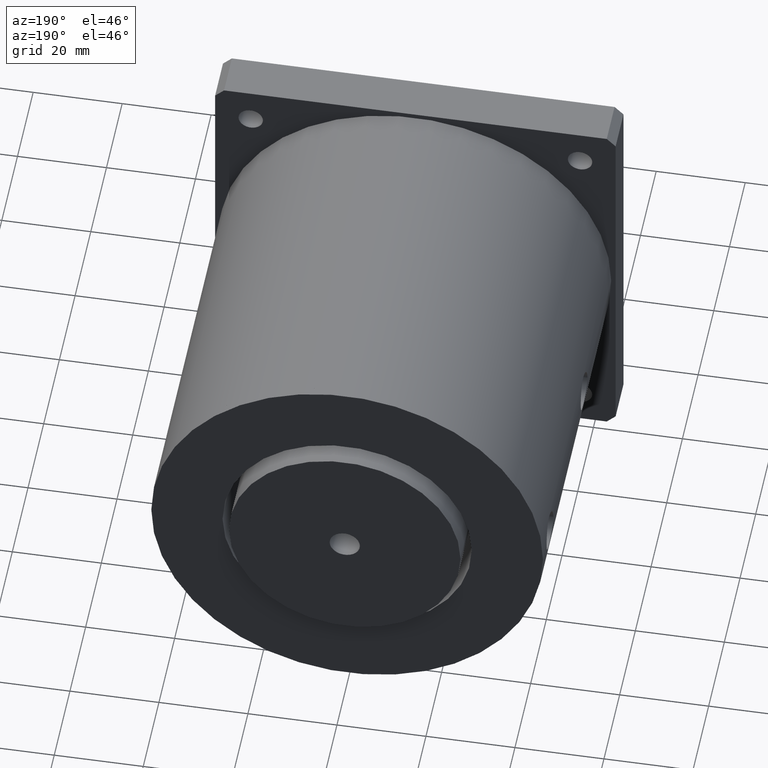
[diagram: clean part render]
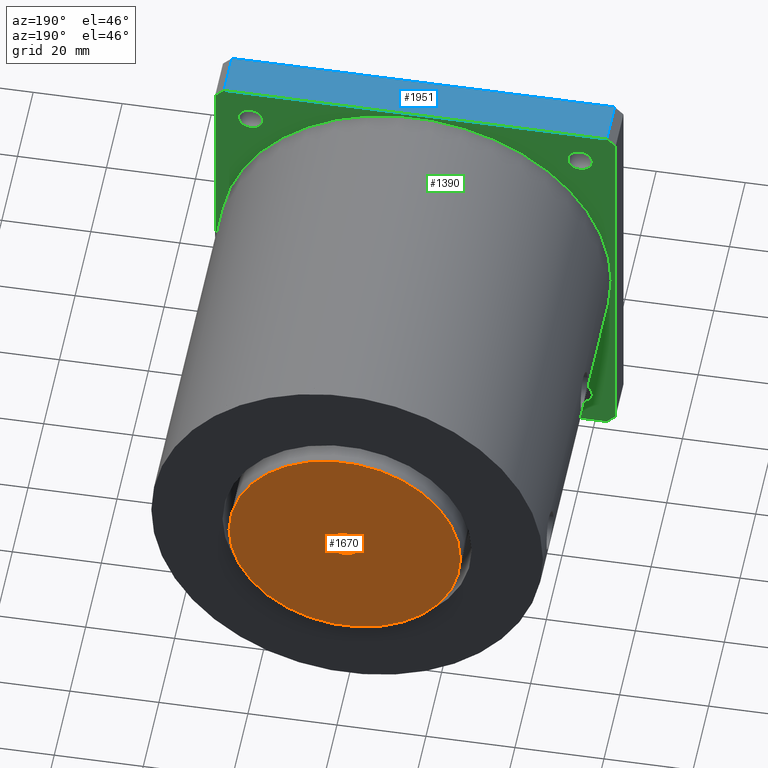
[diagram: same view with three faces highlighted in distinct colors, each labeled with its STEP entity id]
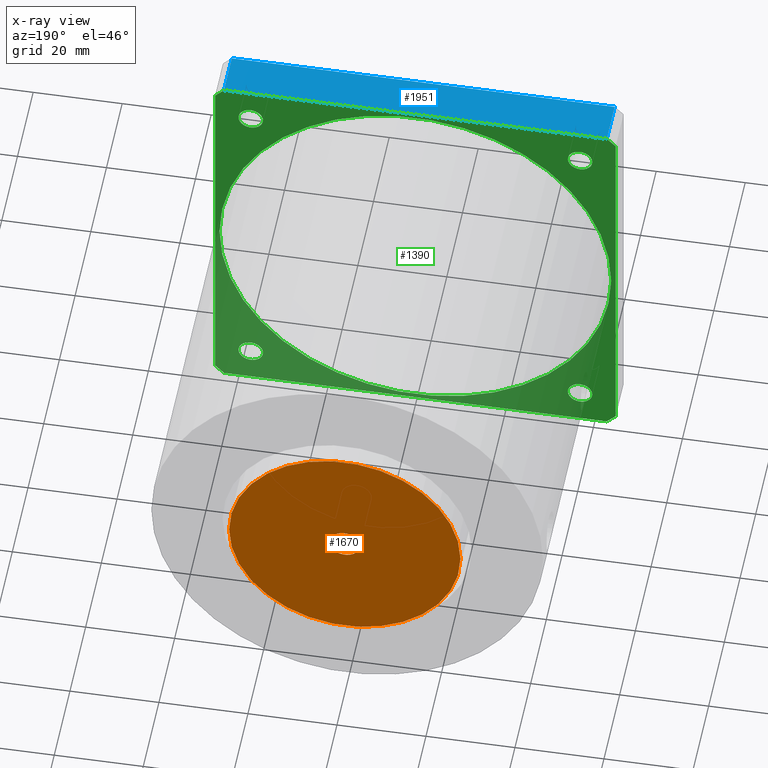
[diagram: x-ray of the same camera — body ghosted, the three highlighted faces saturated]
A machine part, auxiliary view with three faces highlighted in distinct colors.
The next image is the same camera in x-ray (body ghosted, the three faces saturated) — at least one of them is partly hidden behind the body in this view.
Their STEP definitions:

[orange] entity #1670 — the highlighted planar face has unit normal (0, 1, 0).
#861=CARTESIAN_POINT('',(0.E0,-9.E1,0.E0));
#862=DIRECTION('',(0.E0,-1.E0,0.E0));
#863=DIRECTION('',(1.E0,0.E0,0.E0));
#864=AXIS2_PLACEMENT_3D('',#861,#862,#863);
#869=CARTESIAN_POINT('',(0.E0,-9.E1,0.E0));
#870=DIRECTION('',(0.E0,-1.E0,0.E0));
#871=DIRECTION('',(-1.E0,0.E0,0.E0));
#872=AXIS2_PLACEMENT_3D('',#869,#870,#871);
#877=CARTESIAN_POINT('',(0.E0,-9.E1,0.E0));
#878=DIRECTION('',(0.E0,-1.E0,0.E0));
#879=DIRECTION('',(-1.E0,0.E0,0.E0));
#880=AXIS2_PLACEMENT_3D('',#877,#878,#879);
#885=CARTESIAN_POINT('',(0.E0,-9.E1,0.E0));
#886=DIRECTION('',(0.E0,-1.E0,0.E0));
#887=DIRECTION('',(1.E0,0.E0,0.E0));
#888=AXIS2_PLACEMENT_3D('',#885,#886,#887);
#1295=CARTESIAN_POINT('',(2.6E1,-9.E1,0.E0));
#1296=CARTESIAN_POINT('',(-2.6E1,-9.E1,0.E0));
#1297=VERTEX_POINT('',#1295);
#1298=VERTEX_POINT('',#1296);
#1309=CARTESIAN_POINT('',(-3.4E0,-9.E1,0.E0));
#1310=CARTESIAN_POINT('',(3.4E0,-9.E1,0.E0));
#1311=VERTEX_POINT('',#1309);
#1312=VERTEX_POINT('',#1310);
#1655=CARTESIAN_POINT('',(0.E0,-9.E1,0.E0));
#1656=DIRECTION('',(0.E0,-1.E0,0.E0));
#1657=DIRECTION('',(1.E0,0.E0,0.E0));
#1658=AXIS2_PLACEMENT_3D('',#1655,#1656,#1657);
#1659=PLANE('',#1658);
#1660=ORIENTED_EDGE('',*,*,#1635,.F.);
#1661=ORIENTED_EDGE('',*,*,#1649,.F.);
#1662=EDGE_LOOP('',(#1660,#1661));
#1663=FACE_OUTER_BOUND('',#1662,.F.);
#1665=ORIENTED_EDGE('',*,*,#1664,.T.);
#1667=ORIENTED_EDGE('',*,*,#1666,.T.);
#1668=EDGE_LOOP('',(#1665,#1667));
#1669=FACE_BOUND('',#1668,.F.);
#865=CIRCLE('',#864,2.6E1);
#873=CIRCLE('',#872,2.6E1);
#881=CIRCLE('',#880,3.4E0);
#889=CIRCLE('',#888,3.4E0);
#1635=EDGE_CURVE('',#1297,#1298,#865,.T.);
#1649=EDGE_CURVE('',#1298,#1297,#873,.T.);
#1664=EDGE_CURVE('',#1311,#1312,#881,.T.);
#1666=EDGE_CURVE('',#1312,#1311,#889,.T.);
#1670=ADVANCED_FACE('',(#1663,#1669),#1659,.T.);

[blue] entity #1951 — the highlighted planar face has unit normal (0, 0, 1).
#454=DIRECTION('',(-1.E0,0.E0,0.E0));
#455=VECTOR('',#454,8.6E1);
#456=CARTESIAN_POINT('',(4.3E1,0.E0,-4.5E1));
#457=LINE('',#456,#455);
#1068=DIRECTION('',(-1.E0,0.E0,0.E0));
#1069=VECTOR('',#1068,8.6E1);
#1070=CARTESIAN_POINT('',(4.3E1,1.E1,-4.5E1));
#1071=LINE('',#1070,#1069);
#1159=DIRECTION('',(0.E0,-1.E0,0.E0));
#1160=VECTOR('',#1159,1.E1);
#1161=CARTESIAN_POINT('',(-4.3E1,1.E1,-4.5E1));
#1162=LINE('',#1161,#1160);
#1166=DIRECTION('',(0.E0,-1.E0,0.E0));
#1167=VECTOR('',#1166,1.E1);
#1168=CARTESIAN_POINT('',(4.3E1,1.E1,-4.5E1));
#1169=LINE('',#1168,#1167);
#1256=CARTESIAN_POINT('',(-4.3E1,0.E0,-4.5E1));
#1258=VERTEX_POINT('',#1256);
#1259=CARTESIAN_POINT('',(-4.3E1,1.E1,-4.5E1));
#1260=VERTEX_POINT('',#1259);
#1263=CARTESIAN_POINT('',(4.3E1,0.E0,-4.5E1));
#1265=VERTEX_POINT('',#1263);
#1269=CARTESIAN_POINT('',(4.3E1,1.E1,-4.5E1));
#1270=VERTEX_POINT('',#1269);
#1939=CARTESIAN_POINT('',(4.5E1,0.E0,-4.5E1));
#1940=DIRECTION('',(0.E0,0.E0,-1.E0));
#1941=DIRECTION('',(-1.E0,0.E0,0.E0));
#1942=AXIS2_PLACEMENT_3D('',#1939,#1940,#1941);
#1943=PLANE('',#1942);
#1944=ORIENTED_EDGE('',*,*,#1931,.T.);
#1945=ORIENTED_EDGE('',*,*,#1356,.F.);
#1947=ORIENTED_EDGE('',*,*,#1946,.F.);
#1948=ORIENTED_EDGE('',*,*,#1808,.T.);
#1949=EDGE_LOOP('',(#1944,#1945,#1947,#1948));
#1950=FACE_OUTER_BOUND('',#1949,.F.);
#1356=EDGE_CURVE('',#1265,#1258,#457,.T.);
#1808=EDGE_CURVE('',#1270,#1260,#1071,.T.);
#1931=EDGE_CURVE('',#1260,#1258,#1162,.T.);
#1946=EDGE_CURVE('',#1270,#1265,#1169,.T.);
#1951=ADVANCED_FACE('',(#1950),#1943,.T.);

[green] entity #1390 — the highlighted planar face has unit normal (0, -1, 0).
#324=CARTESIAN_POINT('',(0.E0,0.E0,0.E0));
#325=DIRECTION('',(0.E0,-1.E0,0.E0));
#326=DIRECTION('',(1.E0,0.E0,0.E0));
#327=AXIS2_PLACEMENT_3D('',#324,#325,#326);
#333=CARTESIAN_POINT('',(0.E0,0.E0,0.E0));
#334=DIRECTION('',(0.E0,-1.E0,0.E0));
#335=DIRECTION('',(-1.E0,0.E0,0.E0));
#336=AXIS2_PLACEMENT_3D('',#333,#334,#335);
#341=CARTESIAN_POINT('',(-3.7E1,0.E0,3.7E1));
#342=DIRECTION('',(0.E0,-1.E0,0.E0));
#343=DIRECTION('',(-1.E0,0.E0,0.E0));
#344=AXIS2_PLACEMENT_3D('',#341,#342,#343);
#349=CARTESIAN_POINT('',(-3.7E1,0.E0,3.7E1));
#350=DIRECTION('',(0.E0,-1.E0,0.E0));
#351=DIRECTION('',(1.E0,0.E0,0.E0));
#352=AXIS2_PLACEMENT_3D('',#349,#350,#351);
#357=CARTESIAN_POINT('',(3.7E1,0.E0,3.7E1));
#358=DIRECTION('',(0.E0,1.E0,0.E0));
#359=DIRECTION('',(1.E0,0.E0,0.E0));
#360=AXIS2_PLACEMENT_3D('',#357,#358,#359);
#365=CARTESIAN_POINT('',(3.7E1,0.E0,3.7E1));
#366=DIRECTION('',(0.E0,1.E0,0.E0));
#367=DIRECTION('',(-1.E0,0.E0,0.E0));
#368=AXIS2_PLACEMENT_3D('',#365,#366,#367);
#373=CARTESIAN_POINT('',(-3.7E1,0.E0,-3.7E1));
#374=DIRECTION('',(0.E0,1.E0,0.E0));
#375=DIRECTION('',(-1.E0,0.E0,0.E0));
#376=AXIS2_PLACEMENT_3D('',#373,#374,#375);
#381=CARTESIAN_POINT('',(-3.7E1,0.E0,-3.7E1));
#382=DIRECTION('',(0.E0,1.E0,0.E0));
#383=DIRECTION('',(1.E0,0.E0,0.E0));
#384=AXIS2_PLACEMENT_3D('',#381,#382,#383);
#389=CARTESIAN_POINT('',(3.7E1,0.E0,-3.7E1));
#390=DIRECTION('',(0.E0,-1.E0,0.E0));
#391=DIRECTION('',(1.E0,0.E0,0.E0));
#392=AXIS2_PLACEMENT_3D('',#389,#390,#391);
#397=CARTESIAN_POINT('',(3.7E1,0.E0,-3.7E1));
#398=DIRECTION('',(0.E0,-1.E0,0.E0));
#399=DIRECTION('',(-1.E0,0.E0,0.E0));
#400=AXIS2_PLACEMENT_3D('',#397,#398,#399);
#405=DIRECTION('',(7.071067811865E-1,0.E0,-7.071067811865E-1));
#406=VECTOR('',#405,2.828427124746E0);
#407=CARTESIAN_POINT('',(-4.5E1,0.E0,-4.3E1));
#408=LINE('',#407,#406);
#412=DIRECTION('',(0.E0,0.E0,1.E0));
#413=VECTOR('',#412,8.6E1);
#414=CARTESIAN_POINT('',(-4.5E1,0.E0,-4.3E1));
#415=LINE('',#414,#413);
#419=DIRECTION('',(-7.071067811865E-1,0.E0,-7.071067811865E-1));
#420=VECTOR('',#419,2.828427124746E0);
#421=CARTESIAN_POINT('',(-4.3E1,0.E0,4.5E1));
#422=LINE('',#421,#420);
#426=DIRECTION('',(1.E0,0.E0,0.E0));
#427=VECTOR('',#426,8.6E1);
#428=CARTESIAN_POINT('',(-4.3E1,0.E0,4.5E1));
#429=LINE('',#428,#427);
#433=DIRECTION('',(-7.071067811865E-1,0.E0,7.071067811865E-1));
#434=VECTOR('',#433,2.828427124746E0);
#435=CARTESIAN_POINT('',(4.5E1,0.E0,4.3E1));
#436=LINE('',#435,#434);
#440=DIRECTION('',(0.E0,0.E0,-1.E0));
#441=VECTOR('',#440,8.6E1);
#442=CARTESIAN_POINT('',(4.5E1,0.E0,4.3E1));
#443=LINE('',#442,#441);
#447=DIRECTION('',(7.071067811865E-1,0.E0,7.071067811865E-1));
#448=VECTOR('',#447,2.828427124746E0);
#449=CARTESIAN_POINT('',(4.3E1,0.E0,-4.5E1));
#450=LINE('',#449,#448);
#454=DIRECTION('',(-1.E0,0.E0,0.E0));
#455=VECTOR('',#454,8.6E1);
#456=CARTESIAN_POINT('',(4.3E1,0.E0,-4.5E1));
#457=LINE('',#456,#455);
#1215=CARTESIAN_POINT('',(-3.975E1,0.E0,3.7E1));
#1216=CARTESIAN_POINT('',(-3.425E1,0.E0,3.7E1));
#1217=VERTEX_POINT('',#1215);
#1218=VERTEX_POINT('',#1216);
#1227=CARTESIAN_POINT('',(4.4E1,0.E0,0.E0));
#1228=CARTESIAN_POINT('',(-4.4E1,0.E0,1.077689183250E-14));
#1229=VERTEX_POINT('',#1227);
#1230=VERTEX_POINT('',#1228);
#1232=CARTESIAN_POINT('',(3.975E1,0.E0,3.7E1));
#1234=VERTEX_POINT('',#1232);
#1236=CARTESIAN_POINT('',(3.425E1,0.E0,3.7E1));
#1238=VERTEX_POINT('',#1236);
#1240=CARTESIAN_POINT('',(-3.975E1,0.E0,-3.7E1));
#1242=VERTEX_POINT('',#1240);
#1244=CARTESIAN_POINT('',(-3.425E1,0.E0,-3.7E1));
#1246=VERTEX_POINT('',#1244);
#1248=CARTESIAN_POINT('',(3.975E1,0.E0,-3.7E1));
#1250=VERTEX_POINT('',#1248);
#1252=CARTESIAN_POINT('',(3.425E1,0.E0,-3.7E1));
#1254=VERTEX_POINT('',#1252);
#1255=CARTESIAN_POINT('',(-4.5E1,0.E0,-4.3E1));
#1256=CARTESIAN_POINT('',(-4.3E1,0.E0,-4.5E1));
#1257=VERTEX_POINT('',#1255);
#1258=VERTEX_POINT('',#1256);
#1263=CARTESIAN_POINT('',(4.3E1,0.E0,-4.5E1));
#1264=CARTESIAN_POINT('',(4.5E1,0.E0,-4.3E1));
#1265=VERTEX_POINT('',#1263);
#1266=VERTEX_POINT('',#1264);
#1271=CARTESIAN_POINT('',(4.5E1,0.E0,4.3E1));
#1272=CARTESIAN_POINT('',(4.3E1,0.E0,4.5E1));
#1273=VERTEX_POINT('',#1271);
#1274=VERTEX_POINT('',#1272);
#1279=CARTESIAN_POINT('',(-4.3E1,0.E0,4.5E1));
#1280=CARTESIAN_POINT('',(-4.5E1,0.E0,4.3E1));
#1281=VERTEX_POINT('',#1279);
#1282=VERTEX_POINT('',#1280);
#1337=CARTESIAN_POINT('',(0.E0,0.E0,0.E0));
#1338=DIRECTION('',(0.E0,1.E0,0.E0));
#1339=DIRECTION('',(1.E0,0.E0,0.E0));
#1340=AXIS2_PLACEMENT_3D('',#1337,#1338,#1339);
#1341=PLANE('',#1340);
#1343=ORIENTED_EDGE('',*,*,#1342,.F.);
#1345=ORIENTED_EDGE('',*,*,#1344,.T.);
#1347=ORIENTED_EDGE('',*,*,#1346,.F.);
#1349=ORIENTED_EDGE('',*,*,#1348,.T.);
#1351=ORIENTED_EDGE('',*,*,#1350,.F.);
#1353=ORIENTED_EDGE('',*,*,#1352,.T.);
#1355=ORIENTED_EDGE('',*,*,#1354,.F.);
#1357=ORIENTED_EDGE('',*,*,#1356,.T.);
#1358=EDGE_LOOP('',(#1343,#1345,#1347,#1349,#1351,#1353,#1355,#1357));
#1359=FACE_OUTER_BOUND('',#1358,.F.);
#1361=ORIENTED_EDGE('',*,*,#1360,.T.);
#1363=ORIENTED_EDGE('',*,*,#1362,.T.);
#1364=EDGE_LOOP('',(#1361,#1363));
#1365=FACE_BOUND('',#1364,.F.);
#1367=ORIENTED_EDGE('',*,*,#1366,.F.);
#1369=ORIENTED_EDGE('',*,*,#1368,.F.);
#1370=EDGE_LOOP('',(#1367,#1369));
#1371=FACE_BOUND('',#1370,.F.);
#1373=ORIENTED_EDGE('',*,*,#1372,.F.);
#1375=ORIENTED_EDGE('',*,*,#1374,.F.);
#1376=EDGE_LOOP('',(#1373,#1375));
#1377=FACE_BOUND('',#1376,.F.);
#1379=ORIENTED_EDGE('',*,*,#1378,.T.);
#1381=ORIENTED_EDGE('',*,*,#1380,.T.);
#1382=EDGE_LOOP('',(#1379,#1381));
#1383=FACE_BOUND('',#1382,.F.);
#1385=ORIENTED_EDGE('',*,*,#1384,.T.);
#1387=ORIENTED_EDGE('',*,*,#1386,.T.);
#1388=EDGE_LOOP('',(#1385,#1387));
#1389=FACE_BOUND('',#1388,.F.);
#328=CIRCLE('',#327,4.4E1);
#337=CIRCLE('',#336,4.4E1);
#345=CIRCLE('',#344,2.75E0);
#353=CIRCLE('',#352,2.75E0);
#361=CIRCLE('',#360,2.75E0);
#369=CIRCLE('',#368,2.75E0);
#377=CIRCLE('',#376,2.75E0);
#385=CIRCLE('',#384,2.75E0);
#393=CIRCLE('',#392,2.75E0);
#401=CIRCLE('',#400,2.75E0);
#1342=EDGE_CURVE('',#1257,#1258,#408,.T.);
#1344=EDGE_CURVE('',#1257,#1282,#415,.T.);
#1346=EDGE_CURVE('',#1281,#1282,#422,.T.);
#1348=EDGE_CURVE('',#1281,#1274,#429,.T.);
#1350=EDGE_CURVE('',#1273,#1274,#436,.T.);
#1352=EDGE_CURVE('',#1273,#1266,#443,.T.);
#1354=EDGE_CURVE('',#1265,#1266,#450,.T.);
#1356=EDGE_CURVE('',#1265,#1258,#457,.T.);
#1360=EDGE_CURVE('',#1217,#1218,#345,.T.);
#1362=EDGE_CURVE('',#1218,#1217,#353,.T.);
#1366=EDGE_CURVE('',#1234,#1238,#361,.T.);
#1368=EDGE_CURVE('',#1238,#1234,#369,.T.);
#1372=EDGE_CURVE('',#1242,#1246,#377,.T.);
#1374=EDGE_CURVE('',#1246,#1242,#385,.T.);
#1378=EDGE_CURVE('',#1250,#1254,#393,.T.);
#1380=EDGE_CURVE('',#1254,#1250,#401,.T.);
#1384=EDGE_CURVE('',#1229,#1230,#328,.T.);
#1386=EDGE_CURVE('',#1230,#1229,#337,.T.);
#1390=ADVANCED_FACE('',(#1359,#1365,#1371,#1377,#1383,#1389),#1341,.F.);